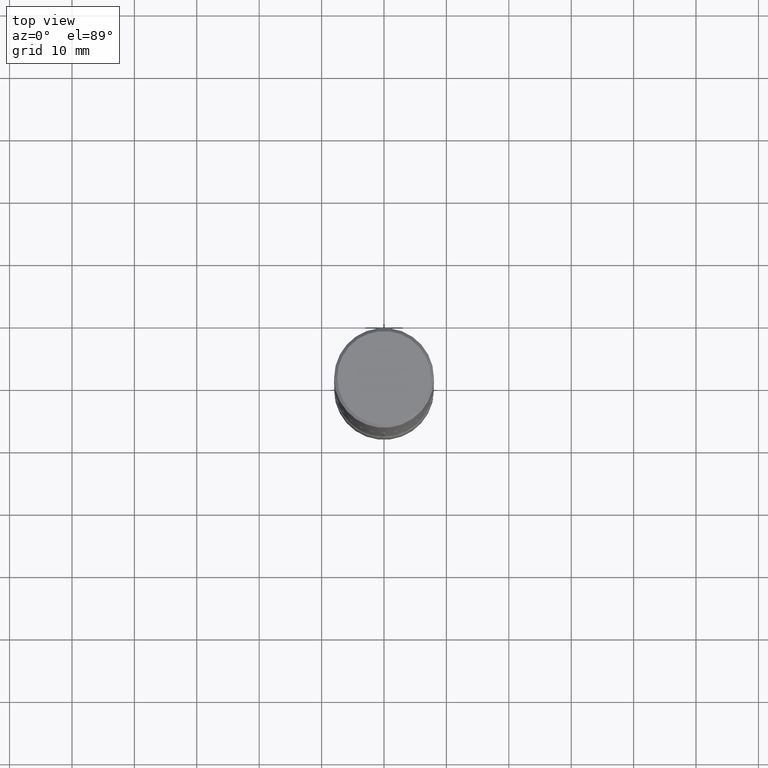
[diagram: clean part render]
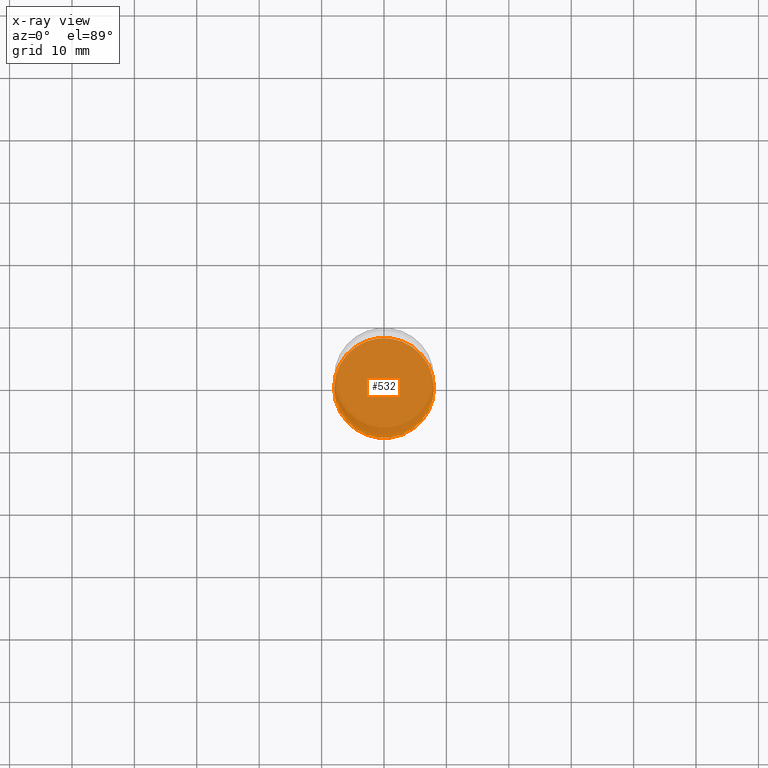
[diagram: x-ray — body ghosted, one internal face saturated and labeled with its STEP entity id]
A machine part, top view, then the same camera in x-ray: the body is ghosted and one INTERNAL B-rep face — a face not visible from any outside direction — is saturated and labeled: STEP entity #532.
In plain terms, the highlighted planar face has unit normal (0, -0, -1).
Its self-contained STEP definition (entity closure, byte-faithful):
#1 = CARTESIAN_POINT ( 'NONE',  ( 0.3149500000000002298, -1.525812259887842581E-14, -3.740200000000000191 ) ) ;
#39 = AXIS2_PLACEMENT_3D ( 'NONE', #116, #329, #42 ) ;
#42 = DIRECTION ( 'NONE',  ( -1.000000000000000000, 6.982962677686265922E-15, -4.876176775795935793E-29 ) ) ;
#52 = CARTESIAN_POINT ( 'NONE',  ( 9.146542428893648262E-29, -1.305883850354113437E-14, -3.740200000000000191 ) ) ;
#86 = AXIS2_PLACEMENT_3D ( 'NONE', #52, #345, #219 ) ;
#112 = CIRCLE ( 'NONE', #86, 0.3149500000000002298 ) ;
#114 = FACE_OUTER_BOUND ( 'NONE', #189, .T. ) ;
#116 = CARTESIAN_POINT ( 'NONE',  ( 9.146542428893648262E-29, -1.305883850354113437E-14, -3.740200000000000191 ) ) ;
#117 = CARTESIAN_POINT ( 'NONE',  ( -0.3149500000000002298, -1.198940838730855529E-14, -3.740200000000000191 ) ) ;
#139 = DIRECTION ( 'NONE',  ( -2.445468806185136597E-29, 3.491481338843145583E-15, 1.000000000000000000 ) ) ;
#144 = VERTEX_POINT ( 'NONE', #1 ) ;
#189 = EDGE_LOOP ( 'NONE', ( #251, #212 ) ) ;
#200 = PLANE ( 'NONE',  #39 ) ;
#212 = ORIENTED_EDGE ( 'NONE', *, *, #336, .T. ) ;
#219 = DIRECTION ( 'NONE',  ( 1.000000000000000000, -6.982962677686264344E-15, 0.000000000000000000 ) ) ;
#251 = ORIENTED_EDGE ( 'NONE', *, *, #416, .T. ) ;
#299 = DIRECTION ( 'NONE',  ( 1.000000000000000000, -6.982962677686264344E-15, 0.000000000000000000 ) ) ;
#329 = DIRECTION ( 'NONE',  ( 2.438088387897960049E-29, -3.491481338843145188E-15, -1.000000000000000000 ) ) ;
#334 = CIRCLE ( 'NONE', #413, 0.3149500000000002298 ) ;
#336 = EDGE_CURVE ( 'NONE', #486, #144, #112, .T. ) ;
#345 = DIRECTION ( 'NONE',  ( -2.445468806185136597E-29, 3.491481338843145583E-15, 1.000000000000000000 ) ) ;
#388 = CARTESIAN_POINT ( 'NONE',  ( 9.146542428893648262E-29, -1.305883850354113437E-14, -3.740200000000000191 ) ) ;
#413 = AXIS2_PLACEMENT_3D ( 'NONE', #388, #139, #299 ) ;
#416 = EDGE_CURVE ( 'NONE', #144, #486, #334, .T. ) ;
#486 = VERTEX_POINT ( 'NONE', #117 ) ;
#532 = ADVANCED_FACE ( 'NONE', ( #114 ), #200, .F. ) ;